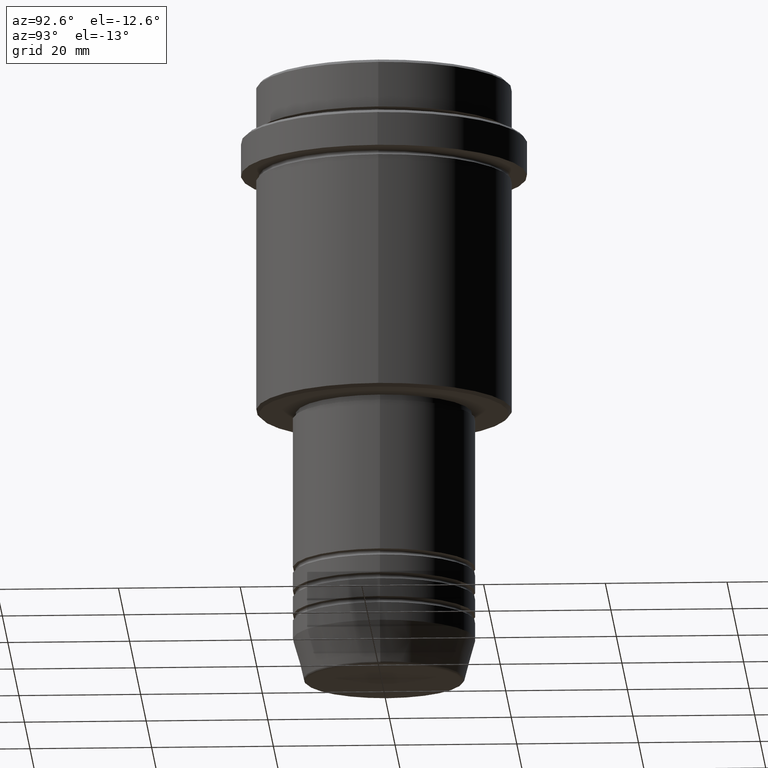
[diagram: clean part render]
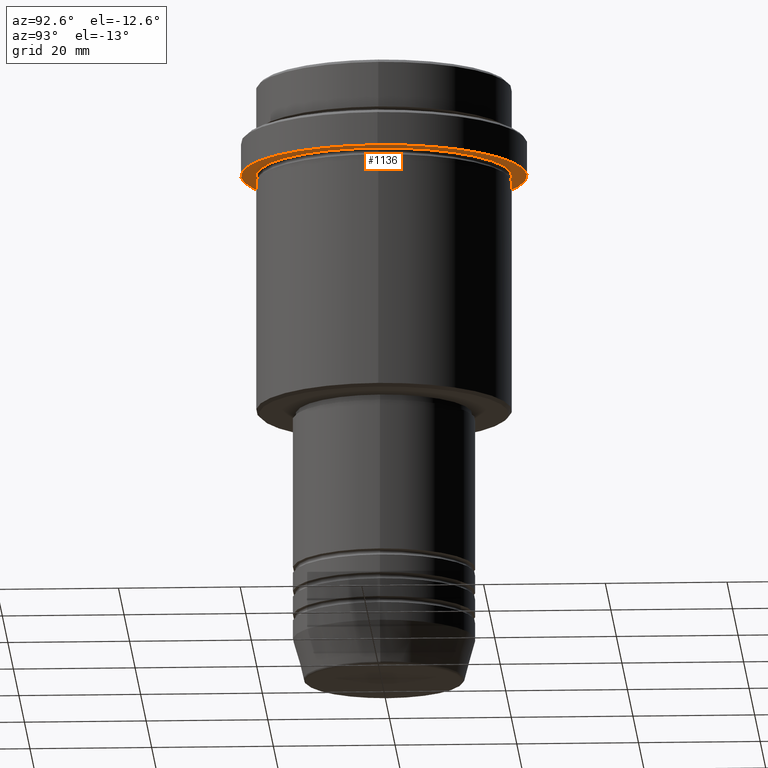
[diagram: same view with one face highlighted and labeled with its STEP entity id]
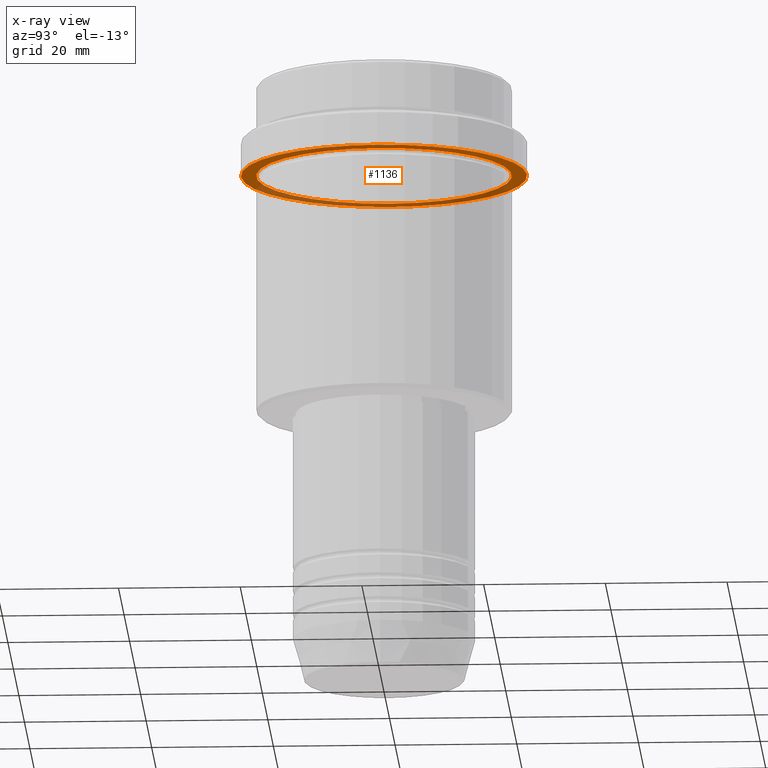
[diagram: x-ray of the same camera — body ghosted, the highlighted face saturated]
A machine part, auxiliary view. The second image highlights one B-rep face of the part: STEP entity #1136.
The next image is the same camera in x-ray: the body ghosted, the highlighted face saturated — about 38% of this face is hidden behind the body in this view.
In plain terms, the highlighted planar face has unit normal (0, 0, -1).
Its self-contained STEP definition (entity closure, byte-faithful):
#19 = DIRECTION ( 'NONE',  ( -0.000000000000000000, -0.000000000000000000, 1.000000000000000000 ) ) ;
#25 = CARTESIAN_POINT ( 'NONE',  ( 0.000000000000000000, 0.000000000000000000, -15.00000000000000000 ) ) ;
#35 = VERTEX_POINT ( 'NONE', #1213 ) ;
#77 = EDGE_CURVE ( 'NONE', #90, #935, #551, .T. ) ;
#90 = VERTEX_POINT ( 'NONE', #746 ) ;
#113 = ORIENTED_EDGE ( 'NONE', *, *, #1390, .T. ) ;
#127 = CARTESIAN_POINT ( 'NONE',  ( 23.50000000000000355, 0.000000000000000000, -15.00000000000000000 ) ) ;
#133 = DIRECTION ( 'NONE',  ( 0.000000000000000000, 0.000000000000000000, -1.000000000000000000 ) ) ;
#238 = CIRCLE ( 'NONE', #284, 23.50000000000000355 ) ;
#284 = AXIS2_PLACEMENT_3D ( 'NONE', #25, #19, #1214 ) ;
#292 = DIRECTION ( 'NONE',  ( -0.000000000000000000, -0.000000000000000000, 1.000000000000000000 ) ) ;
#295 = VERTEX_POINT ( 'NONE', #127 ) ;
#302 = DIRECTION ( 'NONE',  ( -1.000000000000000000, 0.000000000000000000, 0.000000000000000000 ) ) ;
#325 = AXIS2_PLACEMENT_3D ( 'NONE', #492, #409, #862 ) ;
#337 = PLANE ( 'NONE',  #788 ) ;
#409 = DIRECTION ( 'NONE',  ( -0.000000000000000000, -0.000000000000000000, 1.000000000000000000 ) ) ;
#422 = CARTESIAN_POINT ( 'NONE',  ( 0.000000000000000000, 0.000000000000000000, -15.00000000000000178 ) ) ;
#435 = DIRECTION ( 'NONE',  ( -0.000000000000000000, -0.000000000000000000, 1.000000000000000000 ) ) ;
#492 = CARTESIAN_POINT ( 'NONE',  ( 0.000000000000000000, 0.000000000000000000, -15.00000000000000178 ) ) ;
#522 = EDGE_LOOP ( 'NONE', ( #1281, #113 ) ) ;
#551 = CIRCLE ( 'NONE', #325, 20.99999999999999289 ) ;
#746 = CARTESIAN_POINT ( 'NONE',  ( -20.99999999999999289, 0.000000000000000000, -15.00000000000000178 ) ) ;
#762 = DIRECTION ( 'NONE',  ( -1.000000000000000000, 0.000000000000000000, -0.000000000000000000 ) ) ;
#768 = EDGE_CURVE ( 'NONE', #295, #35, #238, .T. ) ;
#788 = AXIS2_PLACEMENT_3D ( 'NONE', #1208, #133, #762 ) ;
#793 = CARTESIAN_POINT ( 'NONE',  ( 0.000000000000000000, 0.000000000000000000, -15.00000000000000000 ) ) ;
#838 = CIRCLE ( 'NONE', #1133, 20.99999999999999289 ) ;
#852 = ORIENTED_EDGE ( 'NONE', *, *, #768, .F. ) ;
#862 = DIRECTION ( 'NONE',  ( -1.000000000000000000, 0.000000000000000000, 0.000000000000000000 ) ) ;
#872 = ORIENTED_EDGE ( 'NONE', *, *, #1065, .F. ) ;
#885 = CIRCLE ( 'NONE', #1292, 23.50000000000000355 ) ;
#935 = VERTEX_POINT ( 'NONE', #1269 ) ;
#1005 = FACE_BOUND ( 'NONE', #522, .T. ) ;
#1065 = EDGE_CURVE ( 'NONE', #35, #295, #885, .T. ) ;
#1106 = DIRECTION ( 'NONE',  ( 1.000000000000000000, 0.000000000000000000, 0.000000000000000000 ) ) ;
#1133 = AXIS2_PLACEMENT_3D ( 'NONE', #422, #292, #302 ) ;
#1136 = ADVANCED_FACE ( 'NONE', ( #1005, #1317 ), #337, .T. ) ;
#1208 = CARTESIAN_POINT ( 'NONE',  ( 0.000000000000000000, 23.50000000000000355, -15.00000000000000178 ) ) ;
#1213 = CARTESIAN_POINT ( 'NONE',  ( -23.50000000000000711, 2.877919977996281109E-15, -15.00000000000000000 ) ) ;
#1214 = DIRECTION ( 'NONE',  ( 1.000000000000000000, 0.000000000000000000, 0.000000000000000000 ) ) ;
#1269 = CARTESIAN_POINT ( 'NONE',  ( 20.99999999999999289, 2.571758278209440872E-15, -15.00000000000000178 ) ) ;
#1281 = ORIENTED_EDGE ( 'NONE', *, *, #77, .T. ) ;
#1292 = AXIS2_PLACEMENT_3D ( 'NONE', #793, #435, #1106 ) ;
#1317 = FACE_OUTER_BOUND ( 'NONE', #1392, .T. ) ;
#1390 = EDGE_CURVE ( 'NONE', #935, #90, #838, .T. ) ;
#1392 = EDGE_LOOP ( 'NONE', ( #852, #872 ) ) ;